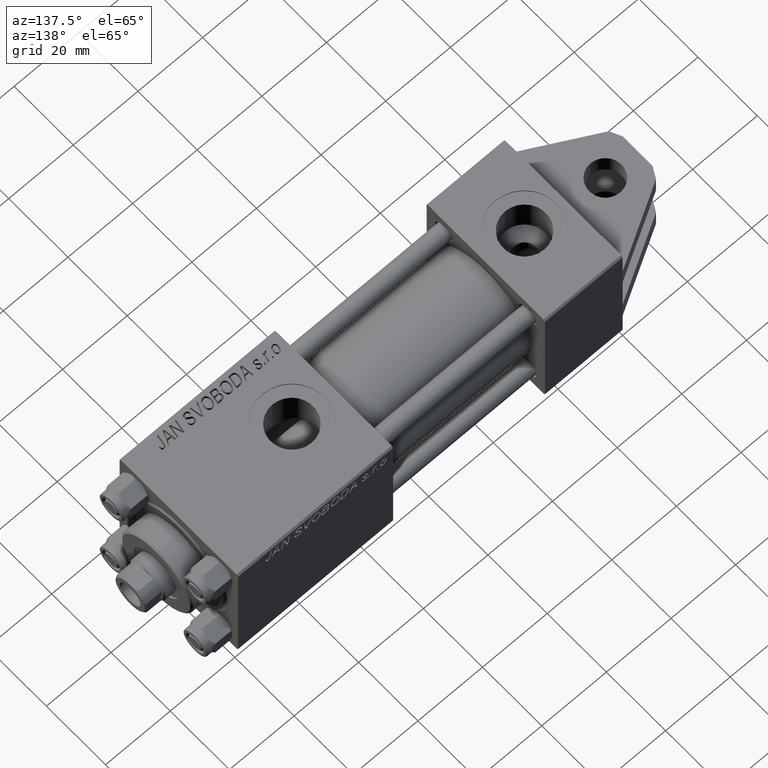
[diagram: clean part render]
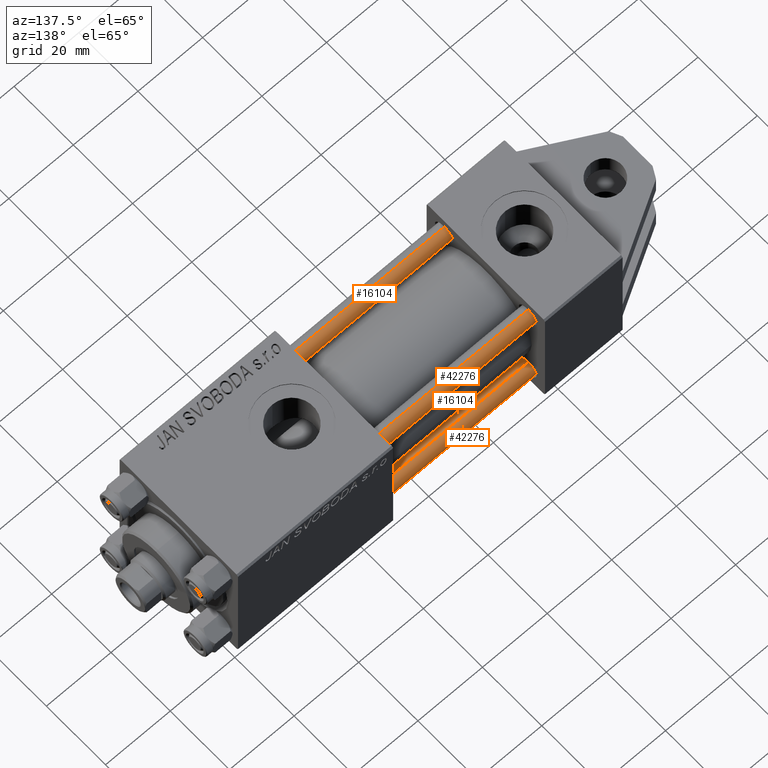
[diagram: same view with one multi-face feature highlighted, each face labeled with its STEP entity id]
A machine part, auxiliary view. The highlighted faces form ONE feature: a constant-radius fillet chain: 4 tangent blend faces with common blend radius 2.5 mm. The faces share edges in the B-rep.
Their STEP definitions:
[1] entity #42276 (Cylinder):
#824 = ORIENTED_EDGE ( 'NONE', *, *, #33326, .F. ) ;
#1909 = CARTESIAN_POINT ( 'NONE',  ( 2.500000000000000000, 3.061616997868383141E-16, 118.0000000000000000 ) ) ;
#3245 = CARTESIAN_POINT ( 'NONE',  ( 0.000000000000000000, 0.000000000000000000, 118.0000000000000000 ) ) ;
#4669 = VECTOR ( 'NONE', #48934, 1000.000000000000000 ) ;
#5913 = AXIS2_PLACEMENT_3D ( 'NONE', #15545, #31333, #30843 ) ;
#9380 = CARTESIAN_POINT ( 'NONE',  ( 2.500000000000000000, 3.061616997868383141E-16, 117.5000000000000142 ) ) ;
#10726 = VERTEX_POINT ( 'NONE', #9380 ) ;
#11127 = AXIS2_PLACEMENT_3D ( 'NONE', #3245, #47296, #28876 ) ;
#13011 = CARTESIAN_POINT ( 'NONE',  ( 0.000000000000000000, 0.000000000000000000, 0.4999999999999726885 ) ) ;
#15545 = CARTESIAN_POINT ( 'NONE',  ( 0.000000000000000000, 0.000000000000000000, 117.5000000000000142 ) ) ;
#17458 = EDGE_CURVE ( 'NONE', #38024, #10726, #32353, .T. ) ;
#17644 = AXIS2_PLACEMENT_3D ( 'NONE', #13011, #40087, #43608 ) ;
#19248 = CIRCLE ( 'NONE', #17644, 2.500000000000000000 ) ;
#21657 = EDGE_CURVE ( 'NONE', #10726, #26806, #36299, .T. ) ;
#22554 = CARTESIAN_POINT ( 'NONE',  ( -2.500000000000000000, 0.000000000000000000, 118.0000000000000000 ) ) ;
#23449 = ORIENTED_EDGE ( 'NONE', *, *, #49265, .T. ) ;
#25239 = DIRECTION ( 'NONE',  ( -0.000000000000000000, -0.000000000000000000, -1.000000000000000000 ) ) ;
#25603 = CYLINDRICAL_SURFACE ( 'NONE', #11127, 2.500000000000000000 ) ;
#26323 = CARTESIAN_POINT ( 'NONE',  ( 2.500000000000000000, 3.061616997868383141E-16, 0.4999999999999726885 ) ) ;
#26806 = VERTEX_POINT ( 'NONE', #26323 ) ;
#28876 = DIRECTION ( 'NONE',  ( -1.000000000000000000, 0.000000000000000000, 0.000000000000000000 ) ) ;
#29603 = VERTEX_POINT ( 'NONE', #33328 ) ;
#30843 = DIRECTION ( 'NONE',  ( 1.000000000000000000, 0.000000000000000000, 0.000000000000000000 ) ) ;
#31333 = DIRECTION ( 'NONE',  ( 0.000000000000000000, 0.000000000000000000, -1.000000000000000000 ) ) ;
#32353 = CIRCLE ( 'NONE', #5913, 2.500000000000000000 ) ;
#33326 = EDGE_CURVE ( 'NONE', #38024, #29603, #45921, .T. ) ;
#33328 = CARTESIAN_POINT ( 'NONE',  ( -2.500000000000000000, 0.000000000000000000, 0.4999999999999726885 ) ) ;
#35902 = EDGE_LOOP ( 'NONE', ( #47345, #39496, #23449, #824 ) ) ;
#36299 = LINE ( 'NONE', #1909, #41333 ) ;
#37638 = FACE_OUTER_BOUND ( 'NONE', #35902, .T. ) ;
#38024 = VERTEX_POINT ( 'NONE', #47744 ) ;
#39496 = ORIENTED_EDGE ( 'NONE', *, *, #21657, .T. ) ;
#40087 = DIRECTION ( 'NONE',  ( -0.000000000000000000, -0.000000000000000000, 1.000000000000000000 ) ) ;
#41333 = VECTOR ( 'NONE', #25239, 1000.000000000000000 ) ;
#42276 = ADVANCED_FACE ( 'NONE', ( #37638 ), #25603, .T. ) ;
#43608 = DIRECTION ( 'NONE',  ( 1.000000000000000000, 0.000000000000000000, 0.000000000000000000 ) ) ;
#45921 = LINE ( 'NONE', #22554, #4669 ) ;
#47296 = DIRECTION ( 'NONE',  ( -0.000000000000000000, -0.000000000000000000, -1.000000000000000000 ) ) ;
#47345 = ORIENTED_EDGE ( 'NONE', *, *, #17458, .T. ) ;
#47744 = CARTESIAN_POINT ( 'NONE',  ( -2.500000000000000000, 0.000000000000000000, 117.5000000000000142 ) ) ;
#48934 = DIRECTION ( 'NONE',  ( -0.000000000000000000, -0.000000000000000000, -1.000000000000000000 ) ) ;
#49265 = EDGE_CURVE ( 'NONE', #26806, #29603, #19248, .T. ) ;
[2] entity #16104 (Cylinder):
#692 = DIRECTION ( 'NONE',  ( 0.000000000000000000, 0.000000000000000000, -1.000000000000000000 ) ) ;
#1738 = ORIENTED_EDGE ( 'NONE', *, *, #33326, .T. ) ;
#1909 = CARTESIAN_POINT ( 'NONE',  ( 2.500000000000000000, 3.061616997868383141E-16, 118.0000000000000000 ) ) ;
#2218 = CARTESIAN_POINT ( 'NONE',  ( 0.000000000000000000, 0.000000000000000000, 0.4999999999999726885 ) ) ;
#3018 = ORIENTED_EDGE ( 'NONE', *, *, #43365, .T. ) ;
#4669 = VECTOR ( 'NONE', #48934, 1000.000000000000000 ) ;
#8553 = CARTESIAN_POINT ( 'NONE',  ( 0.000000000000000000, 0.000000000000000000, 118.0000000000000000 ) ) ;
#9380 = CARTESIAN_POINT ( 'NONE',  ( 2.500000000000000000, 3.061616997868383141E-16, 117.5000000000000142 ) ) ;
#10726 = VERTEX_POINT ( 'NONE', #9380 ) ;
#12087 = FACE_OUTER_BOUND ( 'NONE', #44627, .T. ) ;
#12143 = EDGE_CURVE ( 'NONE', #10726, #38024, #23348, .T. ) ;
#13056 = DIRECTION ( 'NONE',  ( -0.000000000000000000, -0.000000000000000000, 1.000000000000000000 ) ) ;
#16104 = ADVANCED_FACE ( 'NONE', ( #12087 ), #38432, .T. ) ;
#19057 = ORIENTED_EDGE ( 'NONE', *, *, #21657, .F. ) ;
#20016 = CARTESIAN_POINT ( 'NONE',  ( 0.000000000000000000, 0.000000000000000000, 117.5000000000000142 ) ) ;
#21657 = EDGE_CURVE ( 'NONE', #10726, #26806, #36299, .T. ) ;
#22554 = CARTESIAN_POINT ( 'NONE',  ( -2.500000000000000000, 0.000000000000000000, 118.0000000000000000 ) ) ;
#23348 = CIRCLE ( 'NONE', #28165, 2.500000000000000000 ) ;
#23609 = DIRECTION ( 'NONE',  ( -1.000000000000000000, 0.000000000000000000, 0.000000000000000000 ) ) ;
#25239 = DIRECTION ( 'NONE',  ( -0.000000000000000000, -0.000000000000000000, -1.000000000000000000 ) ) ;
#26323 = CARTESIAN_POINT ( 'NONE',  ( 2.500000000000000000, 3.061616997868383141E-16, 0.4999999999999726885 ) ) ;
#26806 = VERTEX_POINT ( 'NONE', #26323 ) ;
#28165 = AXIS2_PLACEMENT_3D ( 'NONE', #20016, #692, #38600 ) ;
#29464 = CIRCLE ( 'NONE', #39893, 2.500000000000000000 ) ;
#29603 = VERTEX_POINT ( 'NONE', #33328 ) ;
#32601 = DIRECTION ( 'NONE',  ( 1.000000000000000000, 0.000000000000000000, 0.000000000000000000 ) ) ;
#33326 = EDGE_CURVE ( 'NONE', #38024, #29603, #45921, .T. ) ;
#33328 = CARTESIAN_POINT ( 'NONE',  ( -2.500000000000000000, 0.000000000000000000, 0.4999999999999726885 ) ) ;
#33962 = ORIENTED_EDGE ( 'NONE', *, *, #12143, .T. ) ;
#36299 = LINE ( 'NONE', #1909, #41333 ) ;
#36324 = AXIS2_PLACEMENT_3D ( 'NONE', #8553, #46970, #23609 ) ;
#38024 = VERTEX_POINT ( 'NONE', #47744 ) ;
#38432 = CYLINDRICAL_SURFACE ( 'NONE', #36324, 2.500000000000000000 ) ;
#38600 = DIRECTION ( 'NONE',  ( 1.000000000000000000, 0.000000000000000000, 0.000000000000000000 ) ) ;
#39893 = AXIS2_PLACEMENT_3D ( 'NONE', #2218, #13056, #32601 ) ;
#41333 = VECTOR ( 'NONE', #25239, 1000.000000000000000 ) ;
#43365 = EDGE_CURVE ( 'NONE', #29603, #26806, #29464, .T. ) ;
#44627 = EDGE_LOOP ( 'NONE', ( #19057, #33962, #1738, #3018 ) ) ;
#45921 = LINE ( 'NONE', #22554, #4669 ) ;
#46970 = DIRECTION ( 'NONE',  ( -0.000000000000000000, -0.000000000000000000, -1.000000000000000000 ) ) ;
#47744 = CARTESIAN_POINT ( 'NONE',  ( -2.500000000000000000, 0.000000000000000000, 117.5000000000000142 ) ) ;
#48934 = DIRECTION ( 'NONE',  ( -0.000000000000000000, -0.000000000000000000, -1.000000000000000000 ) ) ;
[3] entity #42276 (Cylinder):
#824 = ORIENTED_EDGE ( 'NONE', *, *, #33326, .F. ) ;
#1909 = CARTESIAN_POINT ( 'NONE',  ( 2.500000000000000000, 3.061616997868383141E-16, 118.0000000000000000 ) ) ;
#3245 = CARTESIAN_POINT ( 'NONE',  ( 0.000000000000000000, 0.000000000000000000, 118.0000000000000000 ) ) ;
#4669 = VECTOR ( 'NONE', #48934, 1000.000000000000000 ) ;
#5913 = AXIS2_PLACEMENT_3D ( 'NONE', #15545, #31333, #30843 ) ;
#9380 = CARTESIAN_POINT ( 'NONE',  ( 2.500000000000000000, 3.061616997868383141E-16, 117.5000000000000142 ) ) ;
#10726 = VERTEX_POINT ( 'NONE', #9380 ) ;
#11127 = AXIS2_PLACEMENT_3D ( 'NONE', #3245, #47296, #28876 ) ;
#13011 = CARTESIAN_POINT ( 'NONE',  ( 0.000000000000000000, 0.000000000000000000, 0.4999999999999726885 ) ) ;
#15545 = CARTESIAN_POINT ( 'NONE',  ( 0.000000000000000000, 0.000000000000000000, 117.5000000000000142 ) ) ;
#17458 = EDGE_CURVE ( 'NONE', #38024, #10726, #32353, .T. ) ;
#17644 = AXIS2_PLACEMENT_3D ( 'NONE', #13011, #40087, #43608 ) ;
#19248 = CIRCLE ( 'NONE', #17644, 2.500000000000000000 ) ;
#21657 = EDGE_CURVE ( 'NONE', #10726, #26806, #36299, .T. ) ;
#22554 = CARTESIAN_POINT ( 'NONE',  ( -2.500000000000000000, 0.000000000000000000, 118.0000000000000000 ) ) ;
#23449 = ORIENTED_EDGE ( 'NONE', *, *, #49265, .T. ) ;
#25239 = DIRECTION ( 'NONE',  ( -0.000000000000000000, -0.000000000000000000, -1.000000000000000000 ) ) ;
#25603 = CYLINDRICAL_SURFACE ( 'NONE', #11127, 2.500000000000000000 ) ;
#26323 = CARTESIAN_POINT ( 'NONE',  ( 2.500000000000000000, 3.061616997868383141E-16, 0.4999999999999726885 ) ) ;
#26806 = VERTEX_POINT ( 'NONE', #26323 ) ;
#28876 = DIRECTION ( 'NONE',  ( -1.000000000000000000, 0.000000000000000000, 0.000000000000000000 ) ) ;
#29603 = VERTEX_POINT ( 'NONE', #33328 ) ;
#30843 = DIRECTION ( 'NONE',  ( 1.000000000000000000, 0.000000000000000000, 0.000000000000000000 ) ) ;
#31333 = DIRECTION ( 'NONE',  ( 0.000000000000000000, 0.000000000000000000, -1.000000000000000000 ) ) ;
#32353 = CIRCLE ( 'NONE', #5913, 2.500000000000000000 ) ;
#33326 = EDGE_CURVE ( 'NONE', #38024, #29603, #45921, .T. ) ;
#33328 = CARTESIAN_POINT ( 'NONE',  ( -2.500000000000000000, 0.000000000000000000, 0.4999999999999726885 ) ) ;
#35902 = EDGE_LOOP ( 'NONE', ( #47345, #39496, #23449, #824 ) ) ;
#36299 = LINE ( 'NONE', #1909, #41333 ) ;
#37638 = FACE_OUTER_BOUND ( 'NONE', #35902, .T. ) ;
#38024 = VERTEX_POINT ( 'NONE', #47744 ) ;
#39496 = ORIENTED_EDGE ( 'NONE', *, *, #21657, .T. ) ;
#40087 = DIRECTION ( 'NONE',  ( -0.000000000000000000, -0.000000000000000000, 1.000000000000000000 ) ) ;
#41333 = VECTOR ( 'NONE', #25239, 1000.000000000000000 ) ;
#42276 = ADVANCED_FACE ( 'NONE', ( #37638 ), #25603, .T. ) ;
#43608 = DIRECTION ( 'NONE',  ( 1.000000000000000000, 0.000000000000000000, 0.000000000000000000 ) ) ;
#45921 = LINE ( 'NONE', #22554, #4669 ) ;
#47296 = DIRECTION ( 'NONE',  ( -0.000000000000000000, -0.000000000000000000, -1.000000000000000000 ) ) ;
#47345 = ORIENTED_EDGE ( 'NONE', *, *, #17458, .T. ) ;
#47744 = CARTESIAN_POINT ( 'NONE',  ( -2.500000000000000000, 0.000000000000000000, 117.5000000000000142 ) ) ;
#48934 = DIRECTION ( 'NONE',  ( -0.000000000000000000, -0.000000000000000000, -1.000000000000000000 ) ) ;
#49265 = EDGE_CURVE ( 'NONE', #26806, #29603, #19248, .T. ) ;
[4] entity #16104 (Cylinder):
#692 = DIRECTION ( 'NONE',  ( 0.000000000000000000, 0.000000000000000000, -1.000000000000000000 ) ) ;
#1738 = ORIENTED_EDGE ( 'NONE', *, *, #33326, .T. ) ;
#1909 = CARTESIAN_POINT ( 'NONE',  ( 2.500000000000000000, 3.061616997868383141E-16, 118.0000000000000000 ) ) ;
#2218 = CARTESIAN_POINT ( 'NONE',  ( 0.000000000000000000, 0.000000000000000000, 0.4999999999999726885 ) ) ;
#3018 = ORIENTED_EDGE ( 'NONE', *, *, #43365, .T. ) ;
#4669 = VECTOR ( 'NONE', #48934, 1000.000000000000000 ) ;
#8553 = CARTESIAN_POINT ( 'NONE',  ( 0.000000000000000000, 0.000000000000000000, 118.0000000000000000 ) ) ;
#9380 = CARTESIAN_POINT ( 'NONE',  ( 2.500000000000000000, 3.061616997868383141E-16, 117.5000000000000142 ) ) ;
#10726 = VERTEX_POINT ( 'NONE', #9380 ) ;
#12087 = FACE_OUTER_BOUND ( 'NONE', #44627, .T. ) ;
#12143 = EDGE_CURVE ( 'NONE', #10726, #38024, #23348, .T. ) ;
#13056 = DIRECTION ( 'NONE',  ( -0.000000000000000000, -0.000000000000000000, 1.000000000000000000 ) ) ;
#16104 = ADVANCED_FACE ( 'NONE', ( #12087 ), #38432, .T. ) ;
#19057 = ORIENTED_EDGE ( 'NONE', *, *, #21657, .F. ) ;
#20016 = CARTESIAN_POINT ( 'NONE',  ( 0.000000000000000000, 0.000000000000000000, 117.5000000000000142 ) ) ;
#21657 = EDGE_CURVE ( 'NONE', #10726, #26806, #36299, .T. ) ;
#22554 = CARTESIAN_POINT ( 'NONE',  ( -2.500000000000000000, 0.000000000000000000, 118.0000000000000000 ) ) ;
#23348 = CIRCLE ( 'NONE', #28165, 2.500000000000000000 ) ;
#23609 = DIRECTION ( 'NONE',  ( -1.000000000000000000, 0.000000000000000000, 0.000000000000000000 ) ) ;
#25239 = DIRECTION ( 'NONE',  ( -0.000000000000000000, -0.000000000000000000, -1.000000000000000000 ) ) ;
#26323 = CARTESIAN_POINT ( 'NONE',  ( 2.500000000000000000, 3.061616997868383141E-16, 0.4999999999999726885 ) ) ;
#26806 = VERTEX_POINT ( 'NONE', #26323 ) ;
#28165 = AXIS2_PLACEMENT_3D ( 'NONE', #20016, #692, #38600 ) ;
#29464 = CIRCLE ( 'NONE', #39893, 2.500000000000000000 ) ;
#29603 = VERTEX_POINT ( 'NONE', #33328 ) ;
#32601 = DIRECTION ( 'NONE',  ( 1.000000000000000000, 0.000000000000000000, 0.000000000000000000 ) ) ;
#33326 = EDGE_CURVE ( 'NONE', #38024, #29603, #45921, .T. ) ;
#33328 = CARTESIAN_POINT ( 'NONE',  ( -2.500000000000000000, 0.000000000000000000, 0.4999999999999726885 ) ) ;
#33962 = ORIENTED_EDGE ( 'NONE', *, *, #12143, .T. ) ;
#36299 = LINE ( 'NONE', #1909, #41333 ) ;
#36324 = AXIS2_PLACEMENT_3D ( 'NONE', #8553, #46970, #23609 ) ;
#38024 = VERTEX_POINT ( 'NONE', #47744 ) ;
#38432 = CYLINDRICAL_SURFACE ( 'NONE', #36324, 2.500000000000000000 ) ;
#38600 = DIRECTION ( 'NONE',  ( 1.000000000000000000, 0.000000000000000000, 0.000000000000000000 ) ) ;
#39893 = AXIS2_PLACEMENT_3D ( 'NONE', #2218, #13056, #32601 ) ;
#41333 = VECTOR ( 'NONE', #25239, 1000.000000000000000 ) ;
#43365 = EDGE_CURVE ( 'NONE', #29603, #26806, #29464, .T. ) ;
#44627 = EDGE_LOOP ( 'NONE', ( #19057, #33962, #1738, #3018 ) ) ;
#45921 = LINE ( 'NONE', #22554, #4669 ) ;
#46970 = DIRECTION ( 'NONE',  ( -0.000000000000000000, -0.000000000000000000, -1.000000000000000000 ) ) ;
#47744 = CARTESIAN_POINT ( 'NONE',  ( -2.500000000000000000, 0.000000000000000000, 117.5000000000000142 ) ) ;
#48934 = DIRECTION ( 'NONE',  ( -0.000000000000000000, -0.000000000000000000, -1.000000000000000000 ) ) ;